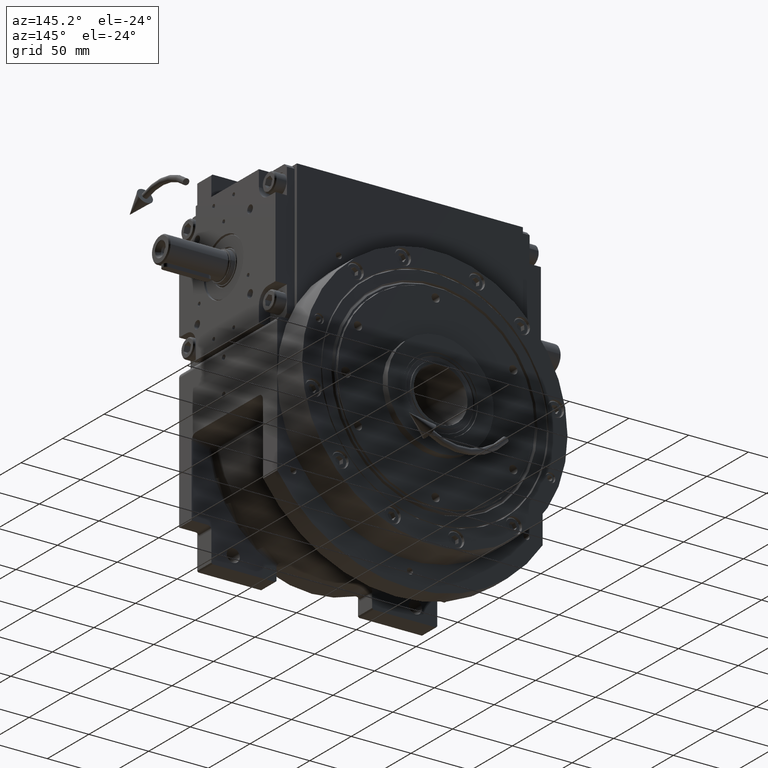
[diagram: clean part render]
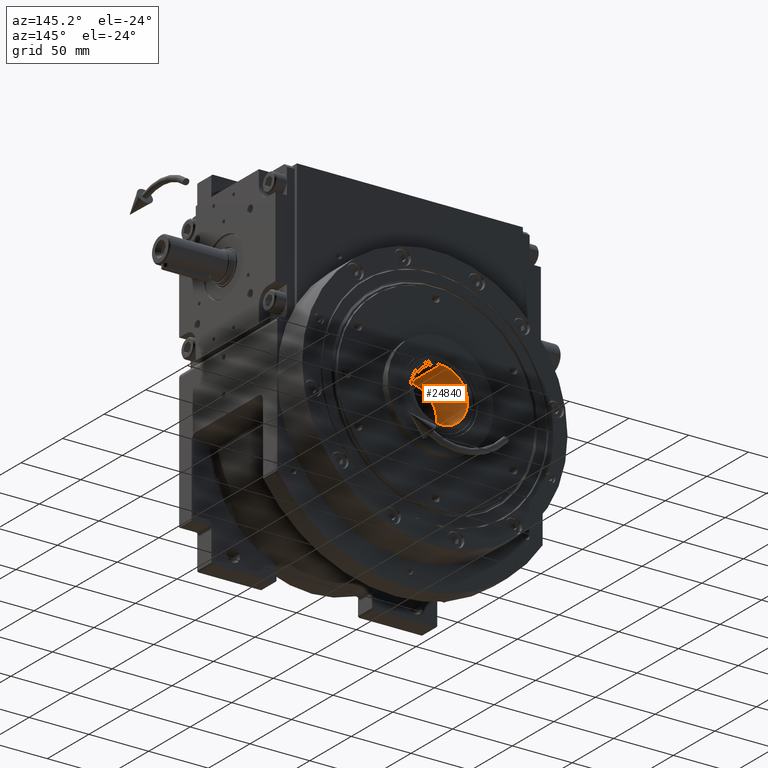
[diagram: same view with one face highlighted and labeled with its STEP entity id]
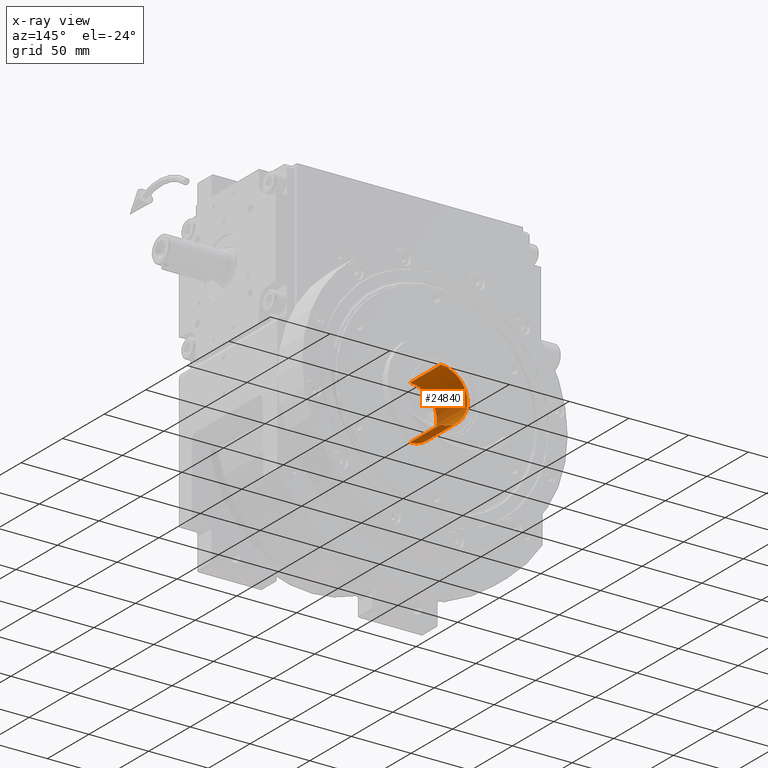
[diagram: x-ray of the same camera — body ghosted, the highlighted face saturated]
A machine part, auxiliary view. The second image highlights one B-rep face of the part: STEP entity #24840.
The next image is the same camera in x-ray: the body ghosted, the highlighted face saturated — about 3% of this face is hidden behind the body in this view.
In plain terms, the highlighted cylindrical surface (edge-blend (fillet) strip) has radius 22.5 mm, axis along (0, -1, 0).
Its self-contained STEP definition (entity closure, byte-faithful):
#4243 = VERTEX_POINT ( 'NONE', #50573 ) ;
#6433 = CARTESIAN_POINT ( 'NONE',  ( -22.50000000000000000, 8.572244476756641794E-16, 9.999999999999994671 ) ) ;
#6920 = VERTEX_POINT ( 'NONE', #21763 ) ;
#6925 = CARTESIAN_POINT ( 'NONE',  ( 0.000000000000000000, 0.000000000000000000, -26.99999999999999645 ) ) ;
#8008 = VECTOR ( 'NONE', #52681, 1000.000000000000000 ) ;
#9871 = DIRECTION ( 'NONE',  ( -1.000000000000000000, 0.000000000000000000, 0.000000000000000000 ) ) ;
#10018 = DIRECTION ( 'NONE',  ( 0.000000000000000000, 0.000000000000000000, -1.000000000000000000 ) ) ;
#15843 = AXIS2_PLACEMENT_3D ( 'NONE', #36125, #66911, #9871 ) ;
#16581 = DIRECTION ( 'NONE',  ( 0.000000000000000000, 0.000000000000000000, -1.000000000000000000 ) ) ;
#17152 = EDGE_LOOP ( 'NONE', ( #26621, #44672, #59300, #21771 ) ) ;
#21351 = CARTESIAN_POINT ( 'NONE',  ( 22.50000000000000000, 1.775709547036180256E-15, 9.999999999999994671 ) ) ;
#21763 = CARTESIAN_POINT ( 'NONE',  ( 22.50000000000000000, 1.775709547036180256E-15, -26.99999999999999645 ) ) ;
#21771 = ORIENTED_EDGE ( 'NONE', *, *, #62534, .F. ) ;
#22610 = EDGE_CURVE ( 'NONE', #63120, #6920, #23312, .T. ) ;
#22969 = CARTESIAN_POINT ( 'NONE',  ( 22.50000000000000000, 5.327128641108539387E-15, 9.999999999999994671 ) ) ;
#23312 = LINE ( 'NONE', #22969, #37665 ) ;
#24840 = ADVANCED_FACE ( 'NONE', ( #50354 ), #51699, .F. ) ;
#26439 = LINE ( 'NONE', #46478, #8008 ) ;
#26621 = ORIENTED_EDGE ( 'NONE', *, *, #46116, .T. ) ;
#30452 = CARTESIAN_POINT ( 'NONE',  ( 0.000000000000000000, 0.000000000000000000, 9.999999999999994671 ) ) ;
#36125 = CARTESIAN_POINT ( 'NONE',  ( 0.000000000000000000, 2.571673343026990270E-15, 9.999999999999994671 ) ) ;
#36624 = DIRECTION ( 'NONE',  ( -1.000000000000000000, 0.000000000000000000, 0.000000000000000000 ) ) ;
#37665 = VECTOR ( 'NONE', #44030, 1000.000000000000000 ) ;
#44030 = DIRECTION ( 'NONE',  ( 0.000000000000000000, 0.000000000000000000, -1.000000000000000000 ) ) ;
#44672 = ORIENTED_EDGE ( 'NONE', *, *, #49245, .T. ) ;
#45842 = VERTEX_POINT ( 'NONE', #6433 ) ;
#46116 = EDGE_CURVE ( 'NONE', #45842, #4243, #26439, .T. ) ;
#46478 = CARTESIAN_POINT ( 'NONE',  ( -22.50000000000000000, 2.571673343026990270E-15, 9.999999999999994671 ) ) ;
#49245 = EDGE_CURVE ( 'NONE', #4243, #6920, #51166, .T. ) ;
#49524 = AXIS2_PLACEMENT_3D ( 'NONE', #30452, #10018, #36624 ) ;
#50354 = FACE_OUTER_BOUND ( 'NONE', #17152, .T. ) ;
#50573 = CARTESIAN_POINT ( 'NONE',  ( -22.50000000000000000, 8.572244476756641794E-16, -26.99999999999999645 ) ) ;
#51166 = CIRCLE ( 'NONE', #60000, 22.50000000000000000 ) ;
#51699 = CYLINDRICAL_SURFACE ( 'NONE', #15843, 22.50000000000000000 ) ;
#52681 = DIRECTION ( 'NONE',  ( 0.000000000000000000, 0.000000000000000000, -1.000000000000000000 ) ) ;
#53907 = CIRCLE ( 'NONE', #49524, 22.50000000000000000 ) ;
#59300 = ORIENTED_EDGE ( 'NONE', *, *, #22610, .F. ) ;
#60000 = AXIS2_PLACEMENT_3D ( 'NONE', #6925, #16581, #64970 ) ;
#62534 = EDGE_CURVE ( 'NONE', #45842, #63120, #53907, .T. ) ;
#63120 = VERTEX_POINT ( 'NONE', #21351 ) ;
#64970 = DIRECTION ( 'NONE',  ( -1.000000000000000000, 0.000000000000000000, 0.000000000000000000 ) ) ;
#66911 = DIRECTION ( 'NONE',  ( 0.000000000000000000, 0.000000000000000000, 1.000000000000000000 ) ) ;